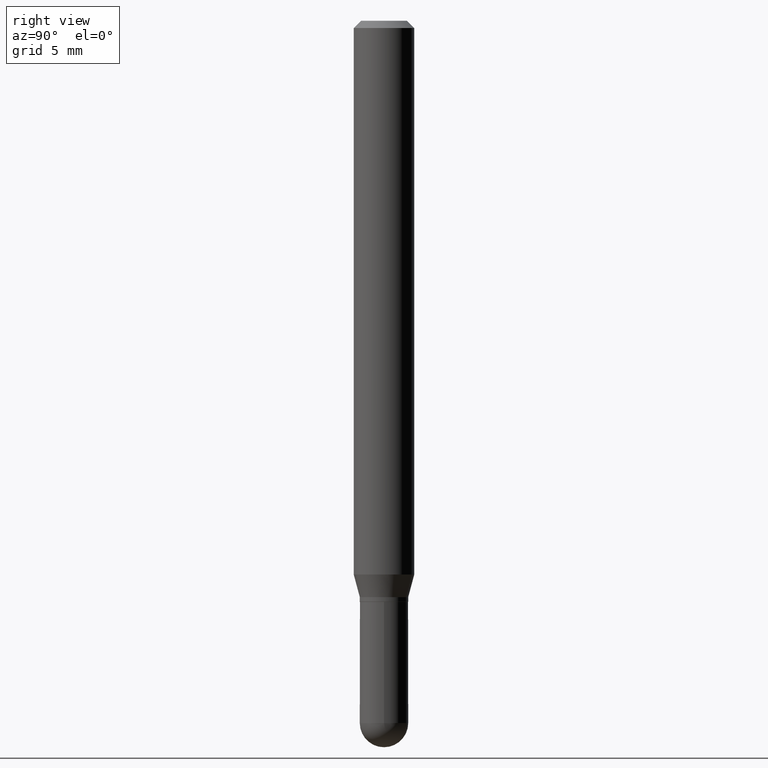
[diagram: clean part render]
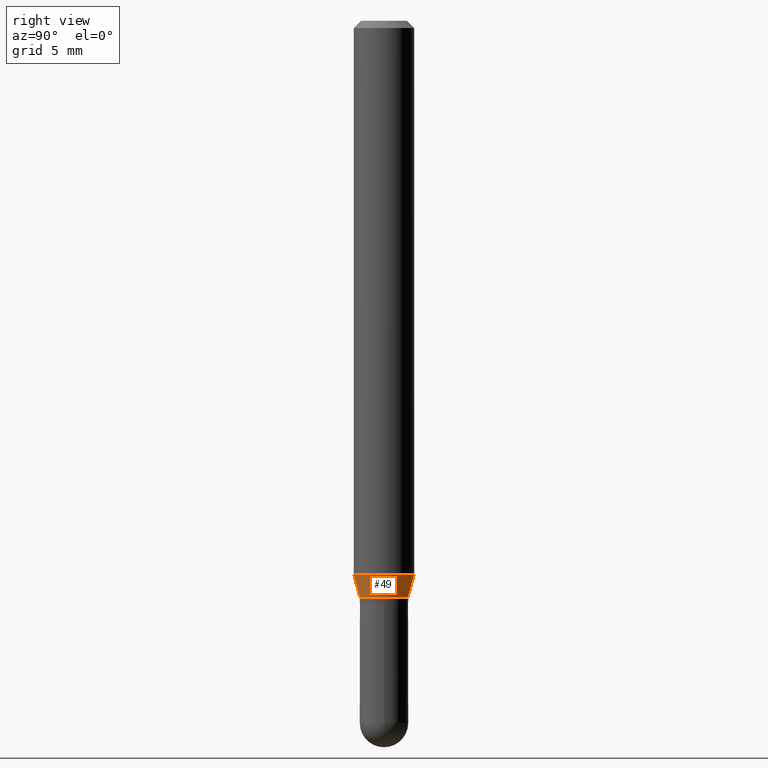
[diagram: same view with one face highlighted and labeled with its STEP entity id]
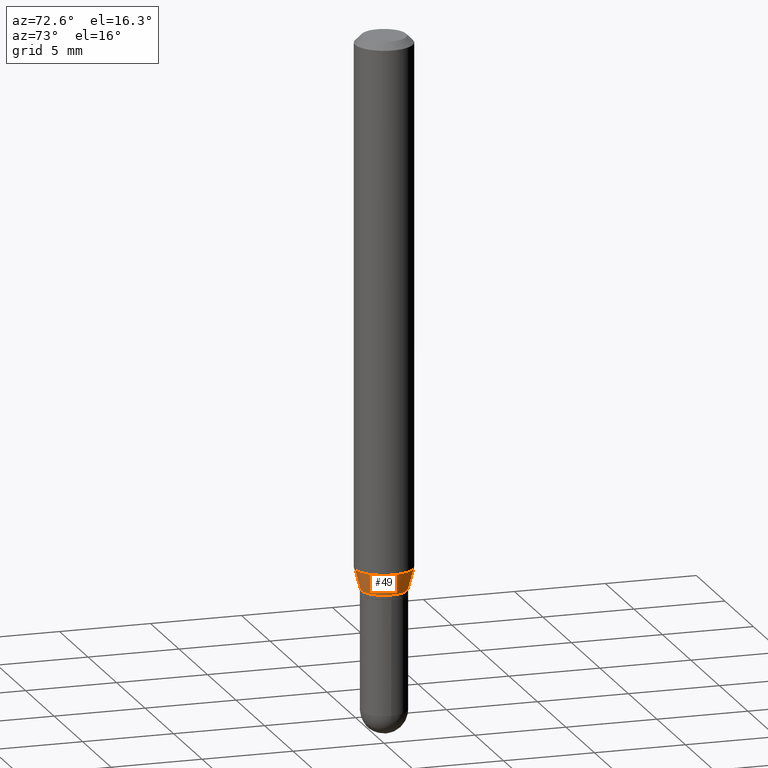
[diagram: same view with one face highlighted and labeled with its STEP entity id]
A machine part, right view. The second image highlights one B-rep face of the part: STEP entity #49.
A second angle (auxiliary view) of the same face is appended — the face is thin or edge-on in the first view.
In plain terms, the highlighted conical surface has half-angle 15 deg.
Its self-contained STEP definition (entity closure, byte-faithful):
#1 = LINE ( 'NONE', #223, #100 ) ;
#12 = DIRECTION ( 'NONE',  ( -2.445464009706415919E-29, 3.491488207673672253E-15, 1.000000000000000000 ) ) ;
#17 = AXIS2_PLACEMENT_3D ( 'NONE', #193, #12, #311 ) ;
#34 = CIRCLE ( 'NONE', #17, 0.05000000000000006523 ) ;
#40 = DIRECTION ( 'NONE',  ( -1.807323732225328167E-15, -0.2588190451025179084, 0.9659258262890690894 ) ) ;
#43 = CARTESIAN_POINT ( 'NONE',  ( 4.440892098500904235E-16, 0.06249999999999599626, -1.143349364905390075 ) ) ;
#49 = ADVANCED_FACE ( 'NONE', ( #396 ), #482, .T. ) ;
#68 = EDGE_CURVE ( 'NONE', #259, #83, #34, .T. ) ;
#83 = VERTEX_POINT ( 'NONE', #282 ) ;
#100 = VECTOR ( 'NONE', #303, 39.37007874015748854 ) ;
#118 = CARTESIAN_POINT ( 'NONE',  ( 2.796019722396818456E-29, -3.991990824818351621E-15, -1.143349364905389853 ) ) ;
#151 = CARTESIAN_POINT ( 'NONE',  ( -3.491481338842845914E-16, -0.05000000000000422162, -1.190000000000000391 ) ) ;
#165 = CIRCLE ( 'NONE', #233, 0.06250000000000000000 ) ;
#193 = CARTESIAN_POINT ( 'NONE',  ( 2.910102171550636088E-29, -4.154870967131671208E-15, -1.190000000000000391 ) ) ;
#221 = EDGE_CURVE ( 'NONE', #429, #460, #165, .T. ) ;
#223 = CARTESIAN_POINT ( 'NONE',  ( 3.552713678800795963E-16, 0.04999999999999590883, -1.190000000000000613 ) ) ;
#232 = CARTESIAN_POINT ( 'NONE',  ( -4.364351673553637142E-16, -0.06250000000000399680, -1.143349364905389409 ) ) ;
#233 = AXIS2_PLACEMENT_3D ( 'NONE', #118, #281, #438 ) ;
#244 = DIRECTION ( 'NONE',  ( -6.982962677686265133E-15, -1.000000000000000000, 2.731847993664259669E-15 ) ) ;
#247 = ORIENTED_EDGE ( 'NONE', *, *, #301, .T. ) ;
#259 = VERTEX_POINT ( 'NONE', #151 ) ;
#281 = DIRECTION ( 'NONE',  ( -2.445464009706415919E-29, 3.491488207673672253E-15, 1.000000000000000000 ) ) ;
#282 = CARTESIAN_POINT ( 'NONE',  ( 3.996802888650851578E-16, 0.04999999999999590883, -1.190000000000000613 ) ) ;
#296 = AXIS2_PLACEMENT_3D ( 'NONE', #481, #489, #244 ) ;
#301 = EDGE_CURVE ( 'NONE', #83, #460, #1, .T. ) ;
#303 = DIRECTION ( 'NONE',  ( 1.839019923739597949E-15, 0.2588190451025246253, 0.9659258262890670910 ) ) ;
#308 = LINE ( 'NONE', #376, #402 ) ;
#311 = DIRECTION ( 'NONE',  ( -6.982962677686265133E-15, -1.000000000000000000, 2.731847993664259669E-15 ) ) ;
#357 = ORIENTED_EDGE ( 'NONE', *, *, #68, .T. ) ;
#376 = CARTESIAN_POINT ( 'NONE',  ( -3.491481338842845914E-16, -0.05000000000000422162, -1.190000000000000391 ) ) ;
#392 = EDGE_CURVE ( 'NONE', #259, #429, #308, .T. ) ;
#395 = ORIENTED_EDGE ( 'NONE', *, *, #221, .F. ) ;
#396 = FACE_OUTER_BOUND ( 'NONE', #423, .T. ) ;
#402 = VECTOR ( 'NONE', #40, 39.37007874015748143 ) ;
#410 = ORIENTED_EDGE ( 'NONE', *, *, #392, .F. ) ;
#423 = EDGE_LOOP ( 'NONE', ( #357, #247, #395, #410 ) ) ;
#429 = VERTEX_POINT ( 'NONE', #232 ) ;
#438 = DIRECTION ( 'NONE',  ( -6.982962677686265922E-15, -1.000000000000000000, 4.370956789862821150E-15 ) ) ;
#460 = VERTEX_POINT ( 'NONE', #43 ) ;
#481 = CARTESIAN_POINT ( 'NONE',  ( 2.910102171550636088E-29, -4.154870967131671208E-15, -1.190000000000000391 ) ) ;
#482 = CONICAL_SURFACE ( 'NONE', #296, 0.05000000000000006523, 0.2617993877991499629 ) ;
#489 = DIRECTION ( 'NONE',  ( -2.445464009706415919E-29, 3.491488207673672253E-15, 1.000000000000000000 ) ) ;